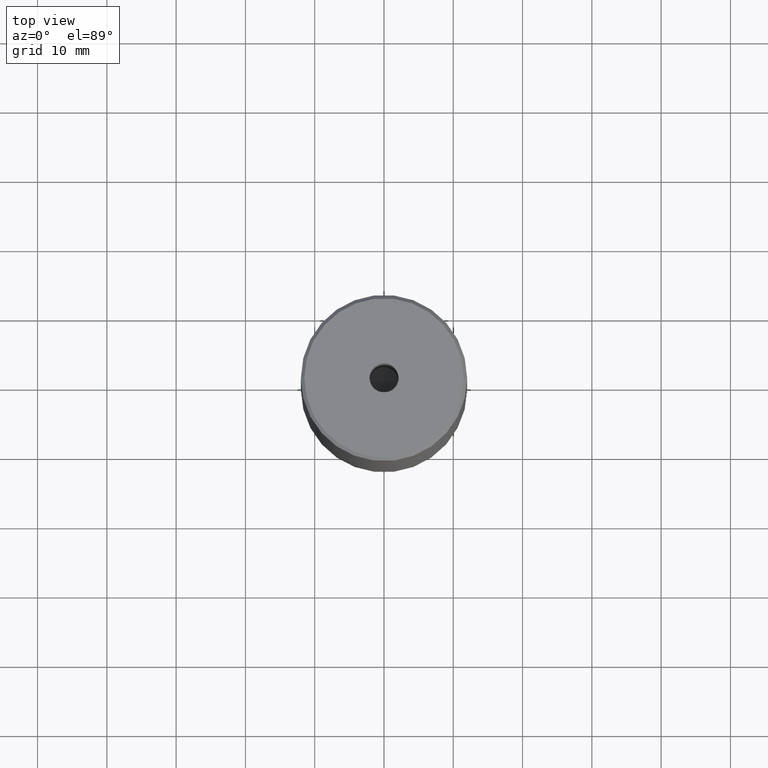
[diagram: clean part render]
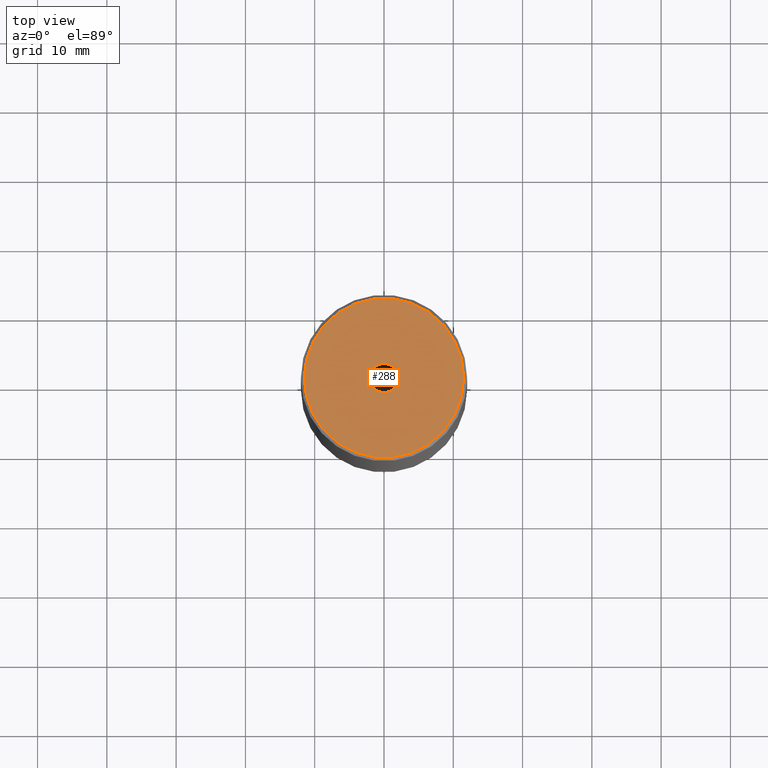
[diagram: same view with one face highlighted and labeled with its STEP entity id]
A machine part, top view. The second image highlights one B-rep face of the part: STEP entity #288.
In plain terms, the highlighted planar face has unit normal (0, -0, 1).
Its self-contained STEP definition (entity closure, byte-faithful):
#14 = ORIENTED_EDGE ( 'NONE', *, *, #561, .F. ) ;
#18 = CIRCLE ( 'NONE', #440, 11.49999999999998046 ) ;
#26 = CARTESIAN_POINT ( 'NONE',  ( 0.000000000000000000, 0.000000000000000000, 0.000000000000000000 ) ) ;
#60 = DIRECTION ( 'NONE',  ( -0.000000000000000000, -0.000000000000000000, 1.000000000000000000 ) ) ;
#73 = CARTESIAN_POINT ( 'NONE',  ( 11.49999999999998046, 1.438959988998138582E-15, 0.000000000000000000 ) ) ;
#76 = CARTESIAN_POINT ( 'NONE',  ( 0.000000000000000000, 0.000000000000000000, -1.990051048614449116E-16 ) ) ;
#85 = DIRECTION ( 'NONE',  ( -0.000000000000000000, -0.000000000000000000, 1.000000000000000000 ) ) ;
#103 = VERTEX_POINT ( 'NONE', #73 ) ;
#111 = CARTESIAN_POINT ( 'NONE',  ( 2.099999999999998757, 0.000000000000000000, -1.990051048614449116E-16 ) ) ;
#113 = DIRECTION ( 'NONE',  ( -0.000000000000000000, -0.000000000000000000, 1.000000000000000000 ) ) ;
#138 = EDGE_CURVE ( 'NONE', #434, #344, #179, .T. ) ;
#154 = CIRCLE ( 'NONE', #274, 2.099999999999998757 ) ;
#179 = CIRCLE ( 'NONE', #374, 2.099999999999998757 ) ;
#186 = FACE_OUTER_BOUND ( 'NONE', #541, .T. ) ;
#192 = ORIENTED_EDGE ( 'NONE', *, *, #138, .F. ) ;
#227 = CARTESIAN_POINT ( 'NONE',  ( 0.000000000000000000, 0.000000000000000000, 0.000000000000000000 ) ) ;
#228 = DIRECTION ( 'NONE',  ( 1.000000000000000000, 0.000000000000000000, 0.000000000000000000 ) ) ;
#261 = DIRECTION ( 'NONE',  ( 1.000000000000000000, 0.000000000000000000, 0.000000000000000000 ) ) ;
#274 = AXIS2_PLACEMENT_3D ( 'NONE', #360, #364, #261 ) ;
#281 = DIRECTION ( 'NONE',  ( 0.000000000000000000, -0.000000000000000000, 1.000000000000000000 ) ) ;
#286 = CARTESIAN_POINT ( 'NONE',  ( -11.49999999999998046, 0.000000000000000000, 0.000000000000000000 ) ) ;
#288 = ADVANCED_FACE ( 'NONE', ( #505, #186 ), #469, .T. ) ;
#303 = CARTESIAN_POINT ( 'NONE',  ( -2.099999999999998757, 2.571758278209440478E-16, -1.990051048614449116E-16 ) ) ;
#328 = AXIS2_PLACEMENT_3D ( 'NONE', #227, #85, #415 ) ;
#344 = VERTEX_POINT ( 'NONE', #303 ) ;
#360 = CARTESIAN_POINT ( 'NONE',  ( 0.000000000000000000, 0.000000000000000000, -1.990051048614449116E-16 ) ) ;
#364 = DIRECTION ( 'NONE',  ( -0.000000000000000000, -0.000000000000000000, 1.000000000000000000 ) ) ;
#374 = AXIS2_PLACEMENT_3D ( 'NONE', #76, #113, #449 ) ;
#380 = EDGE_LOOP ( 'NONE', ( #192, #14 ) ) ;
#388 = DIRECTION ( 'NONE',  ( 1.000000000000000000, 0.000000000000000000, 0.000000000000000000 ) ) ;
#410 = EDGE_CURVE ( 'NONE', #103, #471, #18, .T. ) ;
#415 = DIRECTION ( 'NONE',  ( 1.000000000000000000, 0.000000000000000000, 0.000000000000000000 ) ) ;
#434 = VERTEX_POINT ( 'NONE', #111 ) ;
#440 = AXIS2_PLACEMENT_3D ( 'NONE', #26, #60, #388 ) ;
#449 = DIRECTION ( 'NONE',  ( 1.000000000000000000, 0.000000000000000000, 0.000000000000000000 ) ) ;
#451 = AXIS2_PLACEMENT_3D ( 'NONE', #540, #281, #228 ) ;
#469 = PLANE ( 'NONE',  #451 ) ;
#471 = VERTEX_POINT ( 'NONE', #286 ) ;
#505 = FACE_BOUND ( 'NONE', #380, .T. ) ;
#511 = EDGE_CURVE ( 'NONE', #471, #103, #518, .T. ) ;
#518 = CIRCLE ( 'NONE', #328, 11.49999999999998046 ) ;
#528 = ORIENTED_EDGE ( 'NONE', *, *, #511, .T. ) ;
#540 = CARTESIAN_POINT ( 'NONE',  ( 0.000000000000000000, 0.000000000000000000, 0.000000000000000000 ) ) ;
#541 = EDGE_LOOP ( 'NONE', ( #528, #553 ) ) ;
#553 = ORIENTED_EDGE ( 'NONE', *, *, #410, .T. ) ;
#561 = EDGE_CURVE ( 'NONE', #344, #434, #154, .T. ) ;